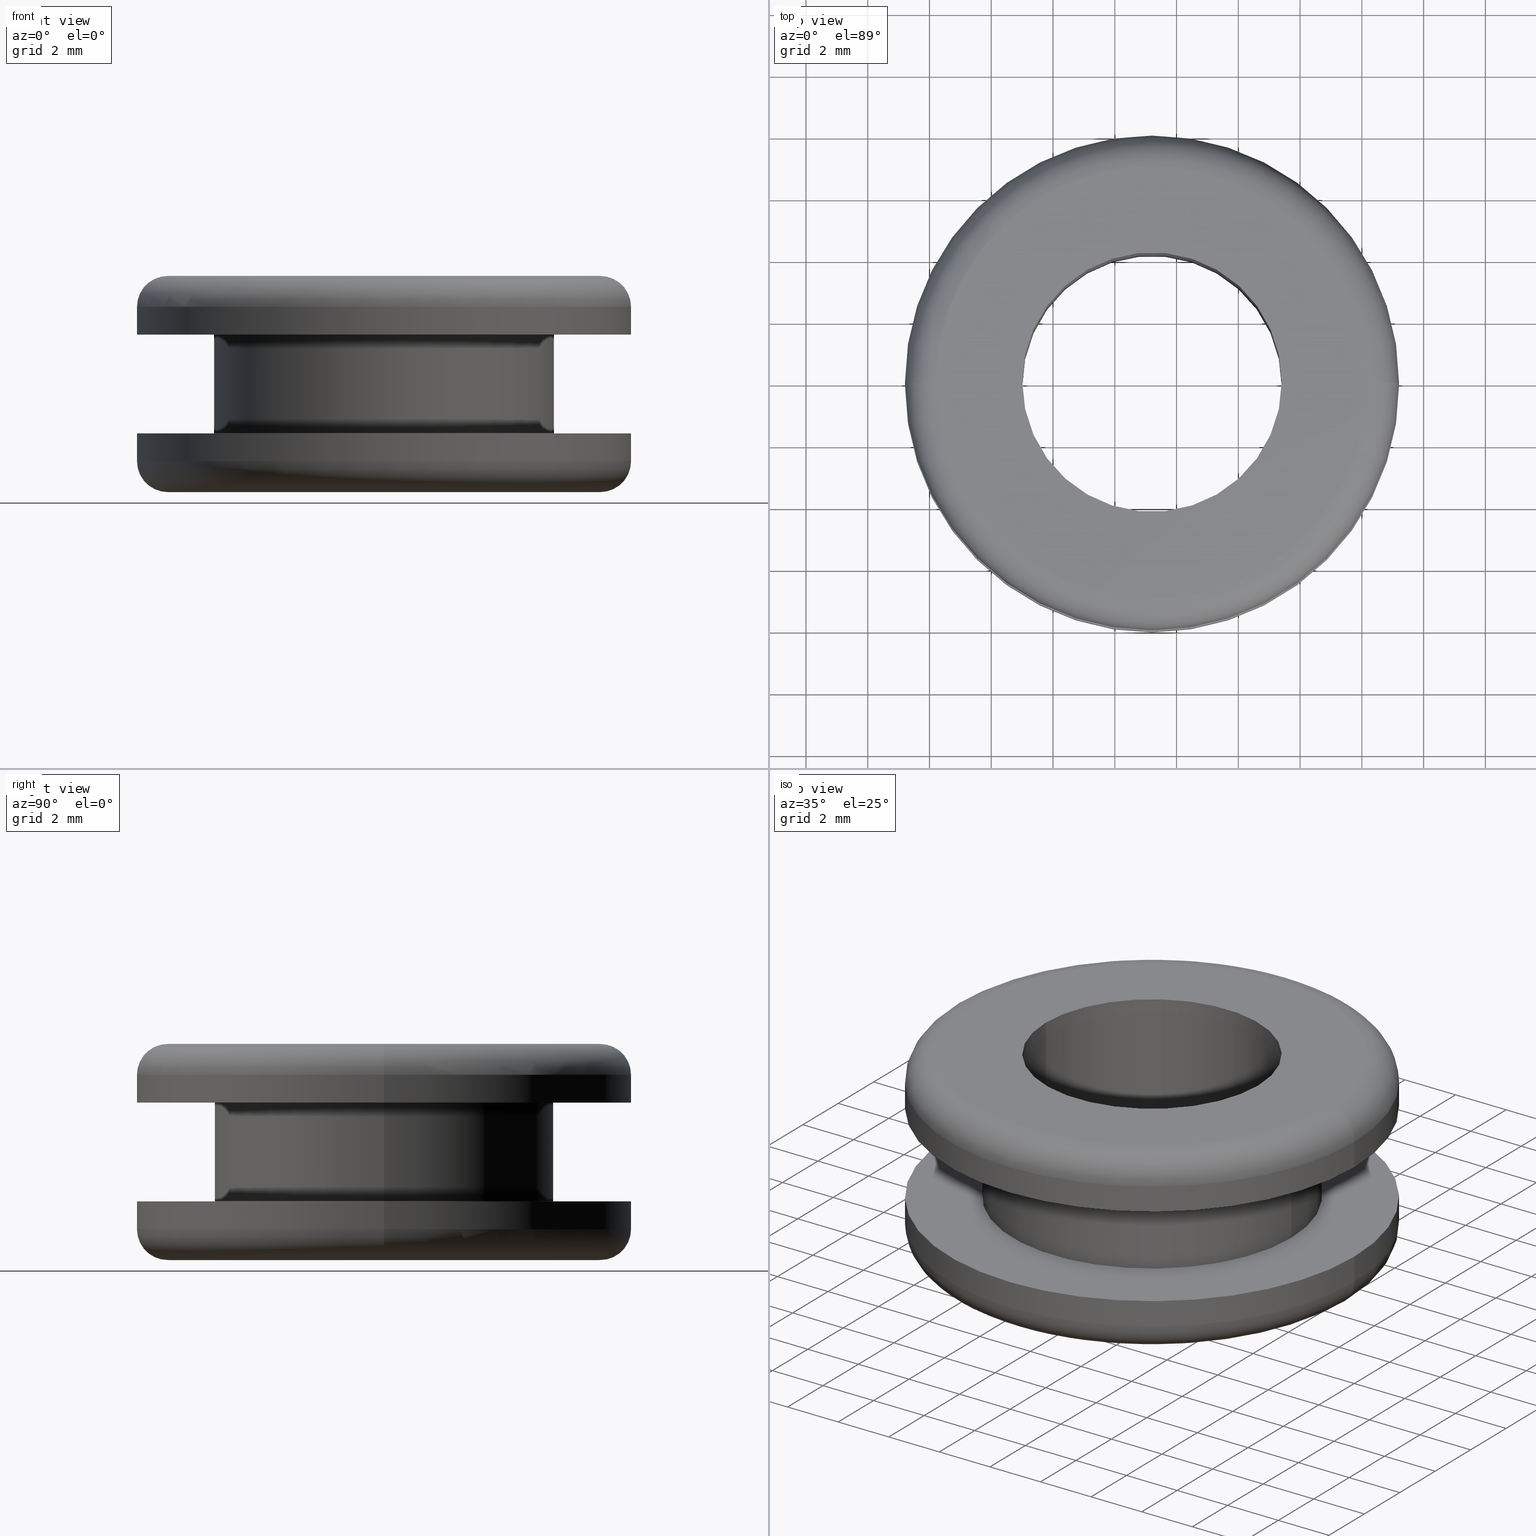
[diagram: canonical four-view strip — front | top / right | iso, engineering-drawing reading convention]
A machine part, canonical four-view strip (front | top / right | iso — engineering-drawing reading convention). The complete STEP part file that produces these views, byte-faithful:
ISO-10303-21;
HEADER;
FILE_DESCRIPTION (( 'STEP AP214' ),
    '1' );
FILE_NAME ('TM_346_5.STEP',
    '2018-06-13T02:49:38',
    ( '' ),
    ( '' ),
    'SwSTEP 2.0',
    'SolidWorks 2015',
    '' );
FILE_SCHEMA (( 'AUTOMOTIVE_DESIGN' ));
ENDSEC;

DATA;
#1 = CARTESIAN_POINT ( 'NONE',  ( 0.0000000000000000000, 0.0000000000000000000, 0.0000000000000000000 ) ) ;
#2 = VERTEX_POINT ( 'NONE', #452 ) ;
#3 = CARTESIAN_POINT ( 'NONE',  ( 103.4049372964547000, 5.143516556265810400E-016, 147.3726952467922000 ) ) ;
#4 = ORIENTED_EDGE ( 'NONE', *, *, #198, .F. ) ;
#5 = DIRECTION ( 'NONE',  ( -1.000000000000000000, 0.0000000000000000000, 0.0000000000000000000 ) ) ;
#6 = CIRCLE ( 'NONE', #473, 6.999999999875009300 ) ;
#7 = SURFACE_STYLE_FILL_AREA ( #62 ) ;
#8 = DIRECTION ( 'NONE',  ( 0.0000000000000000000, 0.0000000000000000000, -1.000000000000000000 ) ) ;
#9 = AXIS2_PLACEMENT_3D ( 'NONE', #443, #225, #255 ) ;
#10 = EDGE_CURVE ( 'NONE', #275, #220, #124, .T. ) ;
#11 = CARTESIAN_POINT ( 'NONE',  ( 99.20493729657970100, 0.0000000000000000000, 141.3726952467922000 ) ) ;
#12 = PLANE ( 'NONE',  #95 ) ;
#13 = EDGE_LOOP ( 'NONE', ( #163, #157 ) ) ;
#14 = FACE_BOUND ( 'NONE', #337, .T. ) ;
#15 = DIRECTION ( 'NONE',  ( 0.0000000000000000000, 0.0000000000000000000, -1.000000000000000000 ) ) ;
#16 = AXIS2_PLACEMENT_3D ( 'NONE', #226, #290, #221 ) ;
#17 = AXIS2_PLACEMENT_3D ( 'NONE', #126, #48, #430 ) ;
#18 = DIRECTION ( 'NONE',  ( 1.000000000000000000, 0.0000000000000000000, 0.0000000000000000000 ) ) ;
#19 = DIRECTION ( 'NONE',  ( -1.000000000000000000, 0.0000000000000000000, 0.0000000000000000000 ) ) ;
#20 = TOROIDAL_SURFACE ( 'NONE', #373, 6.999999999875010200, 1.000000000000000000 ) ;
#21 = PRODUCT_DEFINITION_CONTEXT ( 'detailed design', #251, 'design' ) ;
#22 = TOROIDAL_SURFACE ( 'NONE', #291, 6.999999999875010200, 1.000000000000000000 ) ;
#23 = VECTOR ( 'NONE', #249, 1000.000000000000000 ) ;
#24 = VERTEX_POINT ( 'NONE', #171 ) ;
#25 = CYLINDRICAL_SURFACE ( 'NONE', #418, 7.999999999874954200 ) ;
#26 = LINE ( 'NONE', #431, #412 ) ;
#27 = CARTESIAN_POINT ( 'NONE',  ( 92.20493729670468500, 0.0000000000000000000, 146.3726952467922300 ) ) ;
#28 = DIRECTION ( 'NONE',  ( -1.000000000000000000, 0.0000000000000000000, 0.0000000000000000000 ) ) ;
#29 = AXIS2_PLACEMENT_3D ( 'NONE', #441, #438, #145 ) ;
#30 = EDGE_CURVE ( 'NONE', #363, #289, #156, .T. ) ;
#31 = VERTEX_POINT ( 'NONE', #170 ) ;
#32 = ADVANCED_FACE ( 'NONE', ( #314, #14 ), #12, .F. ) ;
#33 = AXIS2_PLACEMENT_3D ( 'NONE', #346, #196, #155 ) ;
#34 = CIRCLE ( 'NONE', #56, 1.000000000000000900 ) ;
#35 = DIRECTION ( 'NONE',  ( -1.000000000000000000, 0.0000000000000000000, 0.0000000000000000000 ) ) ;
#36 = EDGE_CURVE ( 'NONE', #52, #275, #206, .T. ) ;
#37 = DIRECTION ( 'NONE',  ( -1.000000000000000000, 0.0000000000000000000, 0.0000000000000000000 ) ) ;
#38 = ORIENTED_EDGE ( 'NONE', *, *, #162, .F. ) ;
#39 = PRESENTATION_STYLE_ASSIGNMENT (( #362 ) ) ;
#40 = ORIENTED_EDGE ( 'NONE', *, *, #401, .T. ) ;
#41 = CYLINDRICAL_SURFACE ( 'NONE', #17, 7.999999999875010200 ) ;
#42 = DIRECTION ( 'NONE',  ( 0.0000000000000000000, 0.0000000000000000000, -1.000000000000000000 ) ) ;
#43 = PLANE ( 'NONE',  #33 ) ;
#44 = TOROIDAL_SURFACE ( 'NONE', #457, 6.999999999875010200, 1.000000000000000000 ) ;
#45 =( NAMED_UNIT ( * ) PLANE_ANGLE_UNIT ( ) SI_UNIT ( $, .RADIAN. ) );
#46 = ORIENTED_EDGE ( 'NONE', *, *, #30, .F. ) ;
#47 = AXIS2_PLACEMENT_3D ( 'NONE', #416, #165, #340 ) ;
#48 = DIRECTION ( 'NONE',  ( 0.0000000000000000000, 0.0000000000000000000, -1.000000000000000000 ) ) ;
#49 =( GEOMETRIC_REPRESENTATION_CONTEXT ( 3 ) GLOBAL_UNCERTAINTY_ASSIGNED_CONTEXT ( ( #79 ) ) GLOBAL_UNIT_ASSIGNED_CONTEXT ( ( #398, #182, #440 ) ) REPRESENTATION_CONTEXT ( 'NONE', 'WORKASPACE' ) );
#50 = DIRECTION ( 'NONE',  ( -1.000000000000000000, 0.0000000000000000000, 0.0000000000000000000 ) ) ;
#51 = DIRECTION ( 'NONE',  ( -1.000000000000000000, 0.0000000000000000000, 0.0000000000000000000 ) ) ;
#52 = VERTEX_POINT ( 'NONE', #296 ) ;
#53 = ORIENTED_EDGE ( 'NONE', *, *, #295, .F. ) ;
#54 = CARTESIAN_POINT ( 'NONE',  ( 99.20493729657970100, 0.0000000000000000000, 140.3726952467922000 ) ) ;
#55 = CYLINDRICAL_SURFACE ( 'NONE', #321, 5.499999999874910700 ) ;
#56 = AXIS2_PLACEMENT_3D ( 'NONE', #144, #309, #444 ) ;
#57 = EDGE_CURVE ( 'NONE', #462, #31, #200, .T. ) ;
#58 = FILL_AREA_STYLE ('',( #322 ) ) ;
#59 = EDGE_LOOP ( 'NONE', ( #197, #376, #85, #180 ) ) ;
#60 = DIRECTION ( 'NONE',  ( -1.000000000000000000, 0.0000000000000000000, 0.0000000000000000000 ) ) ;
#61 = DIRECTION ( 'NONE',  ( 0.0000000000000000000, 0.0000000000000000000, -1.000000000000000000 ) ) ;
#62 = FILL_AREA_STYLE ('',( #320 ) ) ;
#63 = FACE_OUTER_BOUND ( 'NONE', #224, .T. ) ;
#64 = FACE_OUTER_BOUND ( 'NONE', #323, .T. ) ;
#65 = EDGE_CURVE ( 'NONE', #328, #130, #246, .T. ) ;
#66 = VERTEX_POINT ( 'NONE', #353 ) ;
#67 = EDGE_LOOP ( 'NONE', ( #347, #132, #133, #89 ) ) ;
#68 = DIRECTION ( 'NONE',  ( 0.0000000000000000000, 0.0000000000000000000, -1.000000000000000000 ) ) ;
#69 = DIRECTION ( 'NONE',  ( -1.000000000000000000, 0.0000000000000000000, 0.0000000000000000000 ) ) ;
#70 = ORIENTED_EDGE ( 'NONE', *, *, #65, .T. ) ;
#71 = AXIS2_PLACEMENT_3D ( 'NONE', #27, #426, #465 ) ;
#72 = DIRECTION ( 'NONE',  ( -1.000000000000000000, 0.0000000000000000000, 0.0000000000000000000 ) ) ;
#73 = AXIS2_PLACEMENT_3D ( 'NONE', #478, #388, #81 ) ;
#74 = VECTOR ( 'NONE', #134, 1000.000000000000000 ) ;
#75 = CARTESIAN_POINT ( 'NONE',  ( 107.2049372964547000, 9.797174393025757100E-016, 141.3726952467922000 ) ) ;
#76 = LINE ( 'NONE', #229, #166 ) ;
#77 = ORIENTED_EDGE ( 'NONE', *, *, #215, .F. ) ;
#78 = CARTESIAN_POINT ( 'NONE',  ( 107.2049372964547000, 9.797174393025757100E-016, 0.0000000000000000000 ) ) ;
#79 = UNCERTAINTY_MEASURE_WITH_UNIT (LENGTH_MEASURE( 1.000000000000000100E-005 ), #398, 'distance_accuracy_value', 'NONE');
#80 = EDGE_LOOP ( 'NONE', ( #77, #384 ) ) ;
#81 = DIRECTION ( 'NONE',  ( -1.000000000000000000, 0.0000000000000000000, 0.0000000000000000000 ) ) ;
#82 = AXIS2_PLACEMENT_3D ( 'NONE', #372, #42, #28 ) ;
#83 = CARTESIAN_POINT ( 'NONE',  ( 93.70493729670478400, 0.0000000000000000000, 142.2726952467922100 ) ) ;
#84 = EDGE_CURVE ( 'NONE', #410, #31, #281, .T. ) ;
#85 = ORIENTED_EDGE ( 'NONE', *, *, #119, .F. ) ;
#86 = CARTESIAN_POINT ( 'NONE',  ( 99.20493729657970100, 0.0000000000000000000, 146.3726952467922300 ) ) ;
#87 = DIRECTION ( 'NONE',  ( 0.0000000000000000000, 0.0000000000000000000, -1.000000000000000000 ) ) ;
#88 = CARTESIAN_POINT ( 'NONE',  ( 104.7049372964545900, 0.0000000000000000000, 142.2726952467922100 ) ) ;
#89 = ORIENTED_EDGE ( 'NONE', *, *, #313, .F. ) ;
#90 = CIRCLE ( 'NONE', #98, 5.499999999874910700 ) ;
#91 = ORIENTED_EDGE ( 'NONE', *, *, #216, .F. ) ;
#92 = EDGE_CURVE ( 'NONE', #220, #66, #293, .T. ) ;
#93 = ORIENTED_EDGE ( 'NONE', *, *, #65, .F. ) ;
#94 = ORIENTED_EDGE ( 'NONE', *, *, #313, .T. ) ;
#95 = AXIS2_PLACEMENT_3D ( 'NONE', #419, #368, #329 ) ;
#96 = CIRCLE ( 'NONE', #9, 6.999999999875009300 ) ;
#97 = CARTESIAN_POINT ( 'NONE',  ( 107.2049372964546200, 9.797174393025656500E-016, 142.2726952467919800 ) ) ;
#98 = AXIS2_PLACEMENT_3D ( 'NONE', #118, #109, #161 ) ;
#99 = MANIFOLD_SOLID_BREP ( '���߰�1', #179 ) ;
#100 = CARTESIAN_POINT ( 'NONE',  ( 92.20493729670468500, 0.0000000000000000000, 141.3726952467922000 ) ) ;
#101 = DIRECTION ( 'NONE',  ( -1.000000000000000000, -1.224646799147352500E-016, 0.0000000000000000000 ) ) ;
#102 = ORIENTED_EDGE ( 'NONE', *, *, #367, .F. ) ;
#103 = VECTOR ( 'NONE', #217, 1000.000000000000000 ) ;
#104 = DIRECTION ( 'NONE',  ( 0.0000000000000000000, 0.0000000000000000000, -1.000000000000000000 ) ) ;
#105 = DIRECTION ( 'NONE',  ( 0.0000000000000000000, 0.0000000000000000000, 1.000000000000000000 ) ) ;
#106 = CARTESIAN_POINT ( 'NONE',  ( 93.70493729670478400, 0.0000000000000000000, 0.0000000000000000000 ) ) ;
#107 = DIRECTION ( 'NONE',  ( 0.0000000000000000000, 0.0000000000000000000, -1.000000000000000000 ) ) ;
#108 = ORIENTED_EDGE ( 'NONE', *, *, #258, .F. ) ;
#109 = DIRECTION ( 'NONE',  ( 0.0000000000000000000, 0.0000000000000000000, -1.000000000000000000 ) ) ;
#110 = AXIS2_PLACEMENT_3D ( 'NONE', #158, #304, #121 ) ;
#111 = EDGE_CURVE ( 'NONE', #219, #410, #154, .T. ) ;
#112 = VECTOR ( 'NONE', #280, 1000.000000000000000 ) ;
#113 = DIRECTION ( 'NONE',  ( -1.000000000000000000, 0.0000000000000000000, 0.0000000000000000000 ) ) ;
#114 = DIRECTION ( 'NONE',  ( 0.0000000000000000000, 0.0000000000000000000, -1.000000000000000000 ) ) ;
#115 = CARTESIAN_POINT ( 'NONE',  ( 99.20493729657970100, 0.0000000000000000000, 146.3726952467922300 ) ) ;
#116 = CARTESIAN_POINT ( 'NONE',  ( 91.20493729670468500, 0.0000000000000000000, 0.0000000000000000000 ) ) ;
#117 = ADVANCED_FACE ( 'NONE', ( #63 ), #55, .T. ) ;
#118 = CARTESIAN_POINT ( 'NONE',  ( 99.20493729657970100, 0.0000000000000000000, 145.4726952467922000 ) ) ;
#119 = EDGE_CURVE ( 'NONE', #24, #66, #286, .T. ) ;
#120 = CIRCLE ( 'NONE', #349, 1.000000000000000900 ) ;
#121 = DIRECTION ( 'NONE',  ( -1.000000000000000000, 0.0000000000000000000, 0.0000000000000000000 ) ) ;
#122 = ORIENTED_EDGE ( 'NONE', *, *, #345, .F. ) ;
#123 = ORIENTED_EDGE ( 'NONE', *, *, #139, .T. ) ;
#124 = CIRCLE ( 'NONE', #469, 7.999999999875010200 ) ;
#125 = DIRECTION ( 'NONE',  ( 0.0000000000000000000, 0.0000000000000000000, -1.000000000000000000 ) ) ;
#126 = CARTESIAN_POINT ( 'NONE',  ( 99.20493729657970100, 0.0000000000000000000, 0.0000000000000000000 ) ) ;
#127 = AXIS2_PLACEMENT_3D ( 'NONE', #392, #467, #113 ) ;
#128 = AXIS2_PLACEMENT_3D ( 'NONE', #449, #402, #35 ) ;
#129 = CARTESIAN_POINT ( 'NONE',  ( 99.20493729657970100, 0.0000000000000000000, 146.3726952467922300 ) ) ;
#130 = VERTEX_POINT ( 'NONE', #210 ) ;
#131 = AXIS2_PLACEMENT_3D ( 'NONE', #1, #105, #18 ) ;
#132 = ORIENTED_EDGE ( 'NONE', *, *, #271, .T. ) ;
#133 = ORIENTED_EDGE ( 'NONE', *, *, #367, .T. ) ;
#134 = DIRECTION ( 'NONE',  ( 0.0000000000000000000, 0.0000000000000000000, -1.000000000000000000 ) ) ;
#135 = EDGE_CURVE ( 'NONE', #52, #169, #199, .T. ) ;
#136 = ORIENTED_EDGE ( 'NONE', *, *, #258, .T. ) ;
#137 = CARTESIAN_POINT ( 'NONE',  ( 106.2049372964547000, 8.572527593878403600E-016, 141.3726952467922000 ) ) ;
#138 = TOROIDAL_SURFACE ( 'NONE', #259, 6.999999999875010200, 1.000000000000000000 ) ;
#139 = EDGE_CURVE ( 'NONE', #275, #24, #120, .T. ) ;
#140 = CIRCLE ( 'NONE', #359, 7.999999999875010200 ) ;
#141 = VERTEX_POINT ( 'NONE', #256 ) ;
#142 = COLOUR_RGB ( '',0.7921568627450980000, 0.8196078431372548800, 0.9333333333333333500 ) ;
#143 = ORIENTED_EDGE ( 'NONE', *, *, #333, .T. ) ;
#144 = CARTESIAN_POINT ( 'NONE',  ( 106.2049372964547000, 8.572527593878403600E-016, 146.3726952467922300 ) ) ;
#145 = DIRECTION ( 'NONE',  ( -1.000000000000000000, 0.0000000000000000000, 0.0000000000000000000 ) ) ;
#146 = AXIS2_PLACEMENT_3D ( 'NONE', #137, #326, #101 ) ;
#147 = ORIENTED_EDGE ( 'NONE', *, *, #288, .F. ) ;
#148 = ADVANCED_FACE ( 'NONE', ( #223 ), #25, .T. ) ;
#149 = CARTESIAN_POINT ( 'NONE',  ( 103.4049372964547000, 5.143516556265810400E-016, 140.3726952467922000 ) ) ;
#150 = PRODUCT_DEFINITION ( 'UNKNOWN', '', #178, #21 ) ;
#151 = CIRCLE ( 'NONE', #29, 6.999999999875009300 ) ;
#152 = ADVANCED_FACE ( 'NONE', ( #273 ), #20, .T. ) ;
#153 = DIRECTION ( 'NONE',  ( 0.0000000000000000000, 0.0000000000000000000, -1.000000000000000000 ) ) ;
#154 = LINE ( 'NONE', #106, #103 ) ;
#155 = DIRECTION ( 'NONE',  ( 1.000000000000000000, 0.0000000000000000000, 0.0000000000000000000 ) ) ;
#156 = CIRCLE ( 'NONE', #16, 4.199999999875012200 ) ;
#157 = ORIENTED_EDGE ( 'NONE', *, *, #241, .F. ) ;
#158 = CARTESIAN_POINT ( 'NONE',  ( 99.20493729657970100, 0.0000000000000000000, 145.4726952467922000 ) ) ;
#159 = CARTESIAN_POINT ( 'NONE',  ( 99.20493729657970100, 0.0000000000000000000, 140.3726952467922000 ) ) ;
#160 = AXIS2_PLACEMENT_3D ( 'NONE', #262, #389, #69 ) ;
#161 = DIRECTION ( 'NONE',  ( -1.000000000000000000, 0.0000000000000000000, 0.0000000000000000000 ) ) ;
#162 = EDGE_CURVE ( 'NONE', #169, #220, #26, .T. ) ;
#163 = ORIENTED_EDGE ( 'NONE', *, *, #135, .F. ) ;
#164 = CARTESIAN_POINT ( 'NONE',  ( 106.2049372964546000, 0.0000000000000000000, 140.3726952467922000 ) ) ;
#165 = DIRECTION ( 'NONE',  ( 0.0000000000000000000, 0.0000000000000000000, -1.000000000000000000 ) ) ;
#166 = VECTOR ( 'NONE', #107, 1000.000000000000000 ) ;
#167 = ORIENTED_EDGE ( 'NONE', *, *, #345, .T. ) ;
#168 = EDGE_CURVE ( 'NONE', #220, #275, #394, .T. ) ;
#169 = VERTEX_POINT ( 'NONE', #97 ) ;
#170 = CARTESIAN_POINT ( 'NONE',  ( 104.7049372964546000, 6.735557395157250200E-016, 142.2726952467922100 ) ) ;
#171 = CARTESIAN_POINT ( 'NONE',  ( 92.20493729670468500, 0.0000000000000000000, 140.3726952467922000 ) ) ;
#172 = ORIENTED_EDGE ( 'NONE', *, *, #162, .T. ) ;
#173 = CARTESIAN_POINT ( 'NONE',  ( 99.20493729657970100, 0.0000000000000000000, 146.3726952467922300 ) ) ;
#174 = STYLED_ITEM ( 'NONE', ( #382 ), #99 ) ;
#175 = DIRECTION ( 'NONE',  ( -1.000000000000000000, 0.0000000000000000000, 0.0000000000000000000 ) ) ;
#176 = AXIS2_PLACEMENT_3D ( 'NONE', #300, #375, #50 ) ;
#177 = DIRECTION ( 'NONE',  ( -0.0000000000000000000, -1.000000000000000000, -0.0000000000000000000 ) ) ;
#178 = PRODUCT_DEFINITION_FORMATION_WITH_SPECIFIED_SOURCE ( 'ANY', '', #303, .NOT_KNOWN. ) ;
#179 = CLOSED_SHELL ( 'NONE', ( #437, #190, #339, #117, #408, #307, #306, #148, #476, #341, #193, #374, #152, #32, #474, #264 ) ) ;
#180 = ORIENTED_EDGE ( 'NONE', *, *, #139, .F. ) ;
#181 = DIRECTION ( 'NONE',  ( 0.0000000000000000000, 0.0000000000000000000, -1.000000000000000000 ) ) ;
#182 =( NAMED_UNIT ( * ) PLANE_ANGLE_UNIT ( ) SI_UNIT ( $, .RADIAN. ) );
#183 = DIRECTION ( 'NONE',  ( 0.0000000000000000000, 0.0000000000000000000, 1.000000000000000000 ) ) ;
#184 = SURFACE_STYLE_USAGE ( .BOTH. , #371 ) ;
#185 = EDGE_LOOP ( 'NONE', ( #91, #390, #70, #453 ) ) ;
#186 = AXIS2_PLACEMENT_3D ( 'NONE', #164, #183, #257 ) ;
#187 = EDGE_CURVE ( 'NONE', #470, #141, #400, .T. ) ;
#188 = VECTOR ( 'NONE', #432, 1000.000000000000000 ) ;
#189 = CARTESIAN_POINT ( 'NONE',  ( 99.20493729657970100, 0.0000000000000000000, 145.4726952467922000 ) ) ;
#190 = ADVANCED_FACE ( 'NONE', ( #319 ), #44, .T. ) ;
#191 = LINE ( 'NONE', #116, #274 ) ;
#192 = DIRECTION ( 'NONE',  ( -1.000000000000000000, 0.0000000000000000000, 0.0000000000000000000 ) ) ;
#193 = ADVANCED_FACE ( 'NONE', ( #427, #245 ), #43, .F. ) ;
#194 = ORIENTED_EDGE ( 'NONE', *, *, #135, .T. ) ;
#195 = SURFACE_STYLE_FILL_AREA ( #58 ) ;
#196 = DIRECTION ( 'NONE',  ( 0.0000000000000000000, 0.0000000000000000000, 1.000000000000000000 ) ) ;
#197 = ORIENTED_EDGE ( 'NONE', *, *, #10, .T. ) ;
#198 = EDGE_CURVE ( 'NONE', #66, #24, #96, .T. ) ;
#199 = CIRCLE ( 'NONE', #278, 7.999999999874912500 ) ;
#200 = LINE ( 'NONE', #471, #23 ) ;
#201 = VERTEX_POINT ( 'NONE', #3 ) ;
#202 = CARTESIAN_POINT ( 'NONE',  ( 93.70493729670478400, 0.0000000000000000000, 145.4726952467922000 ) ) ;
#203 = ORIENTED_EDGE ( 'NONE', *, *, #187, .T. ) ;
#204 = PRESENTATION_LAYER_ASSIGNMENT (  '', '', ( #174 ) ) ;
#205 = AXIS2_PLACEMENT_3D ( 'NONE', #88, #266, #192 ) ;
#206 = LINE ( 'NONE', #429, #74 ) ;
#207 = PRODUCT_RELATED_PRODUCT_CATEGORY ( 'part', '', ( #303 ) ) ;
#208 = FACE_OUTER_BOUND ( 'NONE', #294, .T. ) ;
#209 = UNCERTAINTY_MEASURE_WITH_UNIT (LENGTH_MEASURE( 1.000000000000000100E-005 ), #472, 'distance_accuracy_value', 'NONE');
#210 = CARTESIAN_POINT ( 'NONE',  ( 91.20493729670468500, 0.0000000000000000000, 146.3726952467922300 ) ) ;
#211 = ORIENTED_EDGE ( 'NONE', *, *, #271, .F. ) ;
#212 = CIRCLE ( 'NONE', #214, 5.499999999874910700 ) ;
#213 = ORIENTED_EDGE ( 'NONE', *, *, #445, .F. ) ;
#214 = AXIS2_PLACEMENT_3D ( 'NONE', #464, #8, #72 ) ;
#215 = EDGE_CURVE ( 'NONE', #328, #352, #151, .T. ) ;
#216 = EDGE_CURVE ( 'NONE', #352, #470, #34, .T. ) ;
#217 = DIRECTION ( 'NONE',  ( 0.0000000000000000000, 0.0000000000000000000, -1.000000000000000000 ) ) ;
#218 = DIRECTION ( 'NONE',  ( 0.0000000000000000000, 0.0000000000000000000, -1.000000000000000000 ) ) ;
#219 = VERTEX_POINT ( 'NONE', #202 ) ;
#220 = VERTEX_POINT ( 'NONE', #75 ) ;
#221 = DIRECTION ( 'NONE',  ( -1.000000000000000000, 0.0000000000000000000, 0.0000000000000000000 ) ) ;
#222 = CARTESIAN_POINT ( 'NONE',  ( 99.20493729657970100, 0.0000000000000000000, 141.3726952467922000 ) ) ;
#223 = FACE_OUTER_BOUND ( 'NONE', #254, .T. ) ;
#224 = EDGE_LOOP ( 'NONE', ( #414, #343, #247, #365 ) ) ;
#225 = DIRECTION ( 'NONE',  ( 0.0000000000000000000, 0.0000000000000000000, -1.000000000000000000 ) ) ;
#226 = CARTESIAN_POINT ( 'NONE',  ( 99.20493729657970100, 0.0000000000000000000, 140.3726952467922000 ) ) ;
#227 = DIRECTION ( 'NONE',  ( -1.000000000000000000, 0.0000000000000000000, 0.0000000000000000000 ) ) ;
#228 = MECHANICAL_DESIGN_GEOMETRIC_PRESENTATION_REPRESENTATION (  '', ( #174 ), #248 ) ;
#229 = CARTESIAN_POINT ( 'NONE',  ( 95.00493729670468200, 0.0000000000000000000, 0.0000000000000000000 ) ) ;
#230 = ORIENTED_EDGE ( 'NONE', *, *, #422, .F. ) ;
#231 = CARTESIAN_POINT ( 'NONE',  ( 107.2049372964547000, 9.797174393025757100E-016, 146.3726952467922300 ) ) ;
#232 = CIRCLE ( 'NONE', #160, 7.999999999875010200 ) ;
#233 = CARTESIAN_POINT ( 'NONE',  ( 95.00493729670468200, 0.0000000000000000000, 140.3726952467922000 ) ) ;
#234 = DIRECTION ( 'NONE',  ( -1.000000000000000000, 0.0000000000000000000, 0.0000000000000000000 ) ) ;
#235 = AXIS2_PLACEMENT_3D ( 'NONE', #344, #442, #37 ) ;
#236 = CARTESIAN_POINT ( 'NONE',  ( 91.20493729670468500, 0.0000000000000000000, 141.3726952467922000 ) ) ;
#237 = CIRCLE ( 'NONE', #110, 7.999999999875010200 ) ;
#238 = ORIENTED_EDGE ( 'NONE', *, *, #241, .T. ) ;
#239 = DIRECTION ( 'NONE',  ( -1.000000000000000000, 0.0000000000000000000, 0.0000000000000000000 ) ) ;
#240 = ADVANCED_BREP_SHAPE_REPRESENTATION ( 'TM_346_5', ( #99, #131 ), #447 ) ;
#241 = EDGE_CURVE ( 'NONE', #169, #52, #475, .T. ) ;
#242 = EDGE_LOOP ( 'NONE', ( #282, #454 ) ) ;
#243 = DIRECTION ( 'NONE',  ( -1.000000000000000000, 0.0000000000000000000, 0.0000000000000000000 ) ) ;
#244 = ORIENTED_EDGE ( 'NONE', *, *, #216, .T. ) ;
#245 = FACE_OUTER_BOUND ( 'NONE', #411, .T. ) ;
#246 = CIRCLE ( 'NONE', #71, 1.000000000000000900 ) ;
#247 = ORIENTED_EDGE ( 'NONE', *, *, #84, .F. ) ;
#248 =( GEOMETRIC_REPRESENTATION_CONTEXT ( 3 ) GLOBAL_UNCERTAINTY_ASSIGNED_CONTEXT ( ( #325 ) ) GLOBAL_UNIT_ASSIGNED_CONTEXT ( ( #395, #297, #355 ) ) REPRESENTATION_CONTEXT ( 'NONE', 'WORKASPACE' ) );
#249 = DIRECTION ( 'NONE',  ( 0.0000000000000000000, 0.0000000000000000000, -1.000000000000000000 ) ) ;
#250 = STYLED_ITEM ( 'NONE', ( #39 ), #240 ) ;
#251 = APPLICATION_CONTEXT ( 'automotive_design' ) ;
#252 = FACE_OUTER_BOUND ( 'NONE', #284, .T. ) ;
#253 = ORIENTED_EDGE ( 'NONE', *, *, #119, .T. ) ;
#254 = EDGE_LOOP ( 'NONE', ( #38, #238, #354, #399 ) ) ;
#255 = DIRECTION ( 'NONE',  ( -1.000000000000000000, 0.0000000000000000000, 0.0000000000000000000 ) ) ;
#256 = CARTESIAN_POINT ( 'NONE',  ( 107.2049372964547000, 9.797174393025757100E-016, 145.4726952467922000 ) ) ;
#257 = DIRECTION ( 'NONE',  ( 1.000000000000000000, 0.0000000000000000000, 0.0000000000000000000 ) ) ;
#258 = EDGE_CURVE ( 'NONE', #358, #141, #237, .T. ) ;
#259 = AXIS2_PLACEMENT_3D ( 'NONE', #222, #114, #448 ) ;
#260 = CIRCLE ( 'NONE', #424, 4.199999999875012200 ) ;
#261 = ORIENTED_EDGE ( 'NONE', *, *, #36, .F. ) ;
#262 = CARTESIAN_POINT ( 'NONE',  ( 99.20493729657970100, 0.0000000000000000000, 145.4726952467922000 ) ) ;
#263 = FACE_OUTER_BOUND ( 'NONE', #466, .T. ) ;
#264 = ADVANCED_FACE ( 'NONE', ( #338, #404 ), #383, .F. ) ;
#265 = CIRCLE ( 'NONE', #235, 4.199999999875012200 ) ;
#266 = DIRECTION ( 'NONE',  ( 0.0000000000000000000, 0.0000000000000000000, -1.000000000000000000 ) ) ;
#267 = ORIENTED_EDGE ( 'NONE', *, *, #333, .F. ) ;
#268 = SHAPE_DEFINITION_REPRESENTATION ( #308, #240 ) ;
#269 = ORIENTED_EDGE ( 'NONE', *, *, #422, .T. ) ;
#270 = CARTESIAN_POINT ( 'NONE',  ( 106.2049372964547000, 9.184850993452081300E-016, 147.3726952467922000 ) ) ;
#271 = EDGE_CURVE ( 'NONE', #201, #289, #456, .T. ) ;
#272 = CARTESIAN_POINT ( 'NONE',  ( 92.20493729670468500, 0.0000000000000000000, 147.3726952467922000 ) ) ;
#273 = FACE_OUTER_BOUND ( 'NONE', #185, .T. ) ;
#274 = VECTOR ( 'NONE', #87, 1000.000000000000000 ) ;
#275 = VERTEX_POINT ( 'NONE', #236 ) ;
#276 = CARTESIAN_POINT ( 'NONE',  ( 99.20493729657970100, 0.0000000000000000000, 0.0000000000000000000 ) ) ;
#277 = DIRECTION ( 'NONE',  ( -1.000000000000000000, 0.0000000000000000000, 0.0000000000000000000 ) ) ;
#278 = AXIS2_PLACEMENT_3D ( 'NONE', #357, #318, #175 ) ;
#279 = PRESENTATION_LAYER_ASSIGNMENT (  '', '', ( #250 ) ) ;
#280 = DIRECTION ( 'NONE',  ( 0.0000000000000000000, 0.0000000000000000000, -1.000000000000000000 ) ) ;
#281 = CIRCLE ( 'NONE', #127, 5.499999999874910700 ) ;
#282 = ORIENTED_EDGE ( 'NONE', *, *, #84, .T. ) ;
#283 = FACE_OUTER_BOUND ( 'NONE', #391, .T. ) ;
#284 = EDGE_LOOP ( 'NONE', ( #143, #203, #108, #417 ) ) ;
#285 = DIRECTION ( 'NONE',  ( 0.0000000000000000000, 0.0000000000000000000, -1.000000000000000000 ) ) ;
#286 = CIRCLE ( 'NONE', #302, 6.999999999875009300 ) ;
#287 = COLOUR_RGB ( '',0.7921568627450980000, 0.8196078431372548800, 0.9333333333333333500 ) ;
#288 = EDGE_CURVE ( 'NONE', #141, #358, #232, .T. ) ;
#289 = VERTEX_POINT ( 'NONE', #149 ) ;
#290 = DIRECTION ( 'NONE',  ( 0.0000000000000000000, 0.0000000000000000000, -1.000000000000000000 ) ) ;
#291 = AXIS2_PLACEMENT_3D ( 'NONE', #407, #68, #227 ) ;
#292 = DIRECTION ( 'NONE',  ( 0.0000000000000000000, 0.0000000000000000000, -1.000000000000000000 ) ) ;
#293 = CIRCLE ( 'NONE', #146, 1.000000000000000900 ) ;
#294 = EDGE_LOOP ( 'NONE', ( #310, #434, #40, #147 ) ) ;
#295 = EDGE_CURVE ( 'NONE', #31, #410, #212, .T. ) ;
#296 = CARTESIAN_POINT ( 'NONE',  ( 91.20493729670478400, 0.0000000000000000000, 142.2726952467919800 ) ) ;
#297 =( NAMED_UNIT ( * ) PLANE_ANGLE_UNIT ( ) SI_UNIT ( $, .RADIAN. ) );
#298 = ORIENTED_EDGE ( 'NONE', *, *, #111, .T. ) ;
#299 = APPLICATION_PROTOCOL_DEFINITION ( 'draft international standard', 'automotive_design', 1998, #360 ) ;
#300 = CARTESIAN_POINT ( 'NONE',  ( 99.20493729657970100, 0.0000000000000000000, 0.0000000000000000000 ) ) ;
#301 = ORIENTED_EDGE ( 'NONE', *, *, #317, .T. ) ;
#302 = AXIS2_PLACEMENT_3D ( 'NONE', #54, #15, #51 ) ;
#303 = PRODUCT ( 'TM_346_5', 'TM_346_5', '', ( #458 ) ) ;
#304 = DIRECTION ( 'NONE',  ( 0.0000000000000000000, 0.0000000000000000000, -1.000000000000000000 ) ) ;
#305 = MECHANICAL_DESIGN_GEOMETRIC_PRESENTATION_REPRESENTATION (  '', ( #250 ), #49 ) ;
#306 = ADVANCED_FACE ( 'NONE', ( #311 ), #138, .T. ) ;
#307 = ADVANCED_FACE ( 'NONE', ( #455 ), #22, .T. ) ;
#308 = PRODUCT_DEFINITION_SHAPE ( 'NONE', 'NONE',  #150 ) ;
#309 = DIRECTION ( 'NONE',  ( -1.224646799147353200E-016, 1.000000000000000000, 0.0000000000000000000 ) ) ;
#310 = ORIENTED_EDGE ( 'NONE', *, *, #187, .F. ) ;
#311 = FACE_OUTER_BOUND ( 'NONE', #428, .T. ) ;
#312 = CARTESIAN_POINT ( 'NONE',  ( 91.20493729670468500, 0.0000000000000000000, 145.4726952467922000 ) ) ;
#313 = EDGE_CURVE ( 'NONE', #2, #363, #76, .T. ) ;
#314 = FACE_OUTER_BOUND ( 'NONE', #80, .T. ) ;
#315 = AXIS2_PLACEMENT_3D ( 'NONE', #115, #436, #380 ) ;
#316 = FACE_OUTER_BOUND ( 'NONE', #67, .T. ) ;
#317 = EDGE_CURVE ( 'NONE', #201, #2, #265, .T. ) ;
#318 = DIRECTION ( 'NONE',  ( 0.0000000000000000000, 0.0000000000000000000, -1.000000000000000000 ) ) ;
#319 = FACE_OUTER_BOUND ( 'NONE', #477, .T. ) ;
#320 = FILL_AREA_STYLE_COLOUR ( '', #287 ) ;
#321 = AXIS2_PLACEMENT_3D ( 'NONE', #397, #334, #361 ) ;
#322 = FILL_AREA_STYLE_COLOUR ( '', #142 ) ;
#323 = EDGE_LOOP ( 'NONE', ( #421, #167, #298, #53 ) ) ;
#324 = DIRECTION ( 'NONE',  ( 0.0000000000000000000, 0.0000000000000000000, -1.000000000000000000 ) ) ;
#325 = UNCERTAINTY_MEASURE_WITH_UNIT (LENGTH_MEASURE( 1.000000000000000100E-005 ), #395, 'distance_accuracy_value', 'NONE');
#326 = DIRECTION ( 'NONE',  ( -1.224646799147353200E-016, 1.000000000000000000, 0.0000000000000000000 ) ) ;
#327 = ORIENTED_EDGE ( 'NONE', *, *, #30, .T. ) ;
#328 = VERTEX_POINT ( 'NONE', #272 ) ;
#329 = DIRECTION ( 'NONE',  ( -1.000000000000000000, 0.0000000000000000000, 0.0000000000000000000 ) ) ;
#330 = PLANE ( 'NONE',  #205 ) ;
#331 = CARTESIAN_POINT ( 'NONE',  ( 99.20493729657970100, 0.0000000000000000000, 0.0000000000000000000 ) ) ;
#332 = CARTESIAN_POINT ( 'NONE',  ( 103.4049372964547000, 5.143516556265813300E-016, 0.0000000000000000000 ) ) ;
#333 = EDGE_CURVE ( 'NONE', #130, #470, #439, .T. ) ;
#334 = DIRECTION ( 'NONE',  ( 0.0000000000000000000, 0.0000000000000000000, -1.000000000000000000 ) ) ;
#335 = DIRECTION ( 'NONE',  ( 0.0000000000000000000, 0.0000000000000000000, -1.000000000000000000 ) ) ;
#336 = AXIS2_PLACEMENT_3D ( 'NONE', #189, #335, #5 ) ;
#337 = EDGE_LOOP ( 'NONE', ( #269, #301 ) ) ;
#338 = FACE_BOUND ( 'NONE', #425, .T. ) ;
#339 = ADVANCED_FACE ( 'NONE', ( #252 ), #381, .T. ) ;
#340 = DIRECTION ( 'NONE',  ( -1.000000000000000000, 0.0000000000000000000, 0.0000000000000000000 ) ) ;
#341 = ADVANCED_FACE ( 'NONE', ( #64 ), #435, .T. ) ;
#342 = DIRECTION ( 'NONE',  ( 0.0000000000000000000, 0.0000000000000000000, -1.000000000000000000 ) ) ;
#343 = ORIENTED_EDGE ( 'NONE', *, *, #57, .T. ) ;
#344 = CARTESIAN_POINT ( 'NONE',  ( 99.20493729657970100, 0.0000000000000000000, 147.3726952467922000 ) ) ;
#345 = EDGE_CURVE ( 'NONE', #462, #219, #351, .T. ) ;
#346 = CARTESIAN_POINT ( 'NONE',  ( 107.2049372964546000, 0.0000000000000000000, 145.4726952467922000 ) ) ;
#347 = ORIENTED_EDGE ( 'NONE', *, *, #317, .F. ) ;
#348 = DIRECTION ( 'NONE',  ( 0.0000000000000000000, 0.0000000000000000000, -1.000000000000000000 ) ) ;
#349 = AXIS2_PLACEMENT_3D ( 'NONE', #100, #177, #459 ) ;
#350 = DIRECTION ( 'NONE',  ( -1.000000000000000000, 0.0000000000000000000, 0.0000000000000000000 ) ) ;
#351 = CIRCLE ( 'NONE', #336, 5.499999999874910700 ) ;
#352 = VERTEX_POINT ( 'NONE', #270 ) ;
#353 = CARTESIAN_POINT ( 'NONE',  ( 106.2049372964547000, 9.184850993452081300E-016, 140.3726952467922000 ) ) ;
#354 = ORIENTED_EDGE ( 'NONE', *, *, #36, .T. ) ;
#355 =( NAMED_UNIT ( * ) SI_UNIT ( $, .STERADIAN. ) SOLID_ANGLE_UNIT ( ) );
#356 = EDGE_CURVE ( 'NONE', #470, #130, #140, .T. ) ;
#357 = CARTESIAN_POINT ( 'NONE',  ( 99.20493729657970100, 0.0000000000000000000, 142.2726952467919800 ) ) ;
#358 = VERTEX_POINT ( 'NONE', #312 ) ;
#359 = AXIS2_PLACEMENT_3D ( 'NONE', #86, #342, #234 ) ;
#360 = APPLICATION_CONTEXT ( 'automotive_design' ) ;
#361 = DIRECTION ( 'NONE',  ( -1.000000000000000000, 0.0000000000000000000, 0.0000000000000000000 ) ) ;
#362 = SURFACE_STYLE_USAGE ( .BOTH. , #423 ) ;
#363 = VERTEX_POINT ( 'NONE', #233 ) ;
#364 = FACE_BOUND ( 'NONE', #242, .T. ) ;
#365 = ORIENTED_EDGE ( 'NONE', *, *, #111, .F. ) ;
#366 = CARTESIAN_POINT ( 'NONE',  ( 104.7049372964546000, 6.735557395157250200E-016, 145.4726952467922000 ) ) ;
#367 = EDGE_CURVE ( 'NONE', #289, #363, #260, .T. ) ;
#368 = DIRECTION ( 'NONE',  ( 0.0000000000000000000, 0.0000000000000000000, -1.000000000000000000 ) ) ;
#369 = DIRECTION ( 'NONE',  ( -1.000000000000000000, 0.0000000000000000000, 0.0000000000000000000 ) ) ;
#370 = ORIENTED_EDGE ( 'NONE', *, *, #215, .T. ) ;
#371 = SURFACE_SIDE_STYLE ('',( #7 ) ) ;
#372 = CARTESIAN_POINT ( 'NONE',  ( 99.20493729657970100, 0.0000000000000000000, 142.2726952467919800 ) ) ;
#373 = AXIS2_PLACEMENT_3D ( 'NONE', #173, #61, #60 ) ;
#374 = ADVANCED_FACE ( 'NONE', ( #208 ), #41, .T. ) ;
#375 = DIRECTION ( 'NONE',  ( 0.0000000000000000000, 0.0000000000000000000, -1.000000000000000000 ) ) ;
#376 = ORIENTED_EDGE ( 'NONE', *, *, #92, .T. ) ;
#377 = FACE_OUTER_BOUND ( 'NONE', #13, .T. ) ;
#378 = ORIENTED_EDGE ( 'NONE', *, *, #10, .F. ) ;
#379 = CARTESIAN_POINT ( 'NONE',  ( 99.20493729657970100, 0.0000000000000000000, 147.3726952467922000 ) ) ;
#380 = DIRECTION ( 'NONE',  ( -1.000000000000000000, 0.0000000000000000000, 0.0000000000000000000 ) ) ;
#381 = CYLINDRICAL_SURFACE ( 'NONE', #387, 7.999999999875010200 ) ;
#382 = PRESENTATION_STYLE_ASSIGNMENT (( #184 ) ) ;
#383 = PLANE ( 'NONE',  #186 ) ;
#384 = ORIENTED_EDGE ( 'NONE', *, *, #385, .F. ) ;
#385 = EDGE_CURVE ( 'NONE', #352, #328, #6, .T. ) ;
#386 = ORIENTED_EDGE ( 'NONE', *, *, #288, .T. ) ;
#387 = AXIS2_PLACEMENT_3D ( 'NONE', #276, #104, #239 ) ;
#388 = DIRECTION ( 'NONE',  ( 0.0000000000000000000, 0.0000000000000000000, -1.000000000000000000 ) ) ;
#389 = DIRECTION ( 'NONE',  ( 0.0000000000000000000, 0.0000000000000000000, -1.000000000000000000 ) ) ;
#390 = ORIENTED_EDGE ( 'NONE', *, *, #385, .T. ) ;
#391 = EDGE_LOOP ( 'NONE', ( #211, #230, #94, #327 ) ) ;
#392 = CARTESIAN_POINT ( 'NONE',  ( 99.20493729657970100, 0.0000000000000000000, 142.2726952467922100 ) ) ;
#393 = ORIENTED_EDGE ( 'NONE', *, *, #168, .T. ) ;
#394 = CIRCLE ( 'NONE', #396, 7.999999999875010200 ) ;
#395 =( LENGTH_UNIT ( ) NAMED_UNIT ( * ) SI_UNIT ( .MILLI., .METRE. ) );
#396 = AXIS2_PLACEMENT_3D ( 'NONE', #433, #125, #350 ) ;
#397 = CARTESIAN_POINT ( 'NONE',  ( 99.20493729657970100, 0.0000000000000000000, 0.0000000000000000000 ) ) ;
#398 =( LENGTH_UNIT ( ) NAMED_UNIT ( * ) SI_UNIT ( .MILLI., .METRE. ) );
#399 = ORIENTED_EDGE ( 'NONE', *, *, #168, .F. ) ;
#400 = LINE ( 'NONE', #78, #112 ) ;
#401 = EDGE_CURVE ( 'NONE', #130, #358, #191, .T. ) ;
#402 = DIRECTION ( 'NONE',  ( 0.0000000000000000000, 0.0000000000000000000, -1.000000000000000000 ) ) ;
#403 = AXIS2_PLACEMENT_3D ( 'NONE', #406, #153, #369 ) ;
#404 = FACE_OUTER_BOUND ( 'NONE', #420, .T. ) ;
#405 = APPLICATION_PROTOCOL_DEFINITION ( 'draft international standard', 'automotive_design', 1998, #251 ) ;
#406 = CARTESIAN_POINT ( 'NONE',  ( 99.20493729657970100, 0.0000000000000000000, 0.0000000000000000000 ) ) ;
#407 = CARTESIAN_POINT ( 'NONE',  ( 99.20493729657970100, 0.0000000000000000000, 141.3726952467922000 ) ) ;
#408 = ADVANCED_FACE ( 'NONE', ( #263 ), #463, .T. ) ;
#409 = CIRCLE ( 'NONE', #47, 4.199999999875012200 ) ;
#410 = VERTEX_POINT ( 'NONE', #83 ) ;
#411 = EDGE_LOOP ( 'NONE', ( #136, #386 ) ) ;
#412 = VECTOR ( 'NONE', #292, 1000.000000000000000 ) ;
#413 =( NAMED_UNIT ( * ) SI_UNIT ( $, .STERADIAN. ) SOLID_ANGLE_UNIT ( ) );
#414 = ORIENTED_EDGE ( 'NONE', *, *, #445, .T. ) ;
#415 = DIRECTION ( 'NONE',  ( -1.000000000000000000, 0.0000000000000000000, 0.0000000000000000000 ) ) ;
#416 = CARTESIAN_POINT ( 'NONE',  ( 99.20493729657970100, 0.0000000000000000000, 147.3726952467922000 ) ) ;
#417 = ORIENTED_EDGE ( 'NONE', *, *, #401, .F. ) ;
#418 = AXIS2_PLACEMENT_3D ( 'NONE', #331, #324, #19 ) ;
#419 = CARTESIAN_POINT ( 'NONE',  ( 103.4049372964546100, 0.0000000000000000000, 147.3726952467922000 ) ) ;
#420 = EDGE_LOOP ( 'NONE', ( #253, #446 ) ) ;
#421 = ORIENTED_EDGE ( 'NONE', *, *, #57, .F. ) ;
#422 = EDGE_CURVE ( 'NONE', #2, #201, #409, .T. ) ;
#423 = SURFACE_SIDE_STYLE ('',( #195 ) ) ;
#424 = AXIS2_PLACEMENT_3D ( 'NONE', #159, #348, #468 ) ;
#425 = EDGE_LOOP ( 'NONE', ( #46, #102 ) ) ;
#426 = DIRECTION ( 'NONE',  ( -0.0000000000000000000, -1.000000000000000000, -0.0000000000000000000 ) ) ;
#427 = FACE_BOUND ( 'NONE', #460, .T. ) ;
#428 = EDGE_LOOP ( 'NONE', ( #450, #393, #123, #4 ) ) ;
#429 = CARTESIAN_POINT ( 'NONE',  ( 91.20493729670474200, 0.0000000000000000000, 0.0000000000000000000 ) ) ;
#430 = DIRECTION ( 'NONE',  ( -1.000000000000000000, 0.0000000000000000000, 0.0000000000000000000 ) ) ;
#431 = CARTESIAN_POINT ( 'NONE',  ( 107.2049372964546600, 9.797174393025694000E-016, 0.0000000000000000000 ) ) ;
#432 = DIRECTION ( 'NONE',  ( 0.0000000000000000000, 0.0000000000000000000, -1.000000000000000000 ) ) ;
#433 = CARTESIAN_POINT ( 'NONE',  ( 99.20493729657970100, 0.0000000000000000000, 141.3726952467922000 ) ) ;
#434 = ORIENTED_EDGE ( 'NONE', *, *, #356, .T. ) ;
#435 = CYLINDRICAL_SURFACE ( 'NONE', #403, 5.499999999874910700 ) ;
#436 = DIRECTION ( 'NONE',  ( 0.0000000000000000000, 0.0000000000000000000, -1.000000000000000000 ) ) ;
#437 = ADVANCED_FACE ( 'NONE', ( #316 ), #461, .F. ) ;
#438 = DIRECTION ( 'NONE',  ( 0.0000000000000000000, 0.0000000000000000000, -1.000000000000000000 ) ) ;
#439 = CIRCLE ( 'NONE', #315, 7.999999999875010200 ) ;
#440 =( NAMED_UNIT ( * ) SI_UNIT ( $, .STERADIAN. ) SOLID_ANGLE_UNIT ( ) );
#441 = CARTESIAN_POINT ( 'NONE',  ( 99.20493729657970100, 0.0000000000000000000, 147.3726952467922000 ) ) ;
#442 = DIRECTION ( 'NONE',  ( 0.0000000000000000000, 0.0000000000000000000, -1.000000000000000000 ) ) ;
#443 = CARTESIAN_POINT ( 'NONE',  ( 99.20493729657970100, 0.0000000000000000000, 140.3726952467922000 ) ) ;
#444 = DIRECTION ( 'NONE',  ( -1.000000000000000000, -1.224646799147352500E-016, 0.0000000000000000000 ) ) ;
#445 = EDGE_CURVE ( 'NONE', #219, #462, #90, .T. ) ;
#446 = ORIENTED_EDGE ( 'NONE', *, *, #198, .T. ) ;
#447 =( GEOMETRIC_REPRESENTATION_CONTEXT ( 3 ) GLOBAL_UNCERTAINTY_ASSIGNED_CONTEXT ( ( #209 ) ) GLOBAL_UNIT_ASSIGNED_CONTEXT ( ( #472, #45, #413 ) ) REPRESENTATION_CONTEXT ( 'NONE', 'WORKASPACE' ) );
#448 = DIRECTION ( 'NONE',  ( -1.000000000000000000, 0.0000000000000000000, 0.0000000000000000000 ) ) ;
#449 = CARTESIAN_POINT ( 'NONE',  ( 99.20493729657970100, 0.0000000000000000000, 0.0000000000000000000 ) ) ;
#450 = ORIENTED_EDGE ( 'NONE', *, *, #92, .F. ) ;
#451 = CYLINDRICAL_SURFACE ( 'NONE', #176, 4.199999999875012200 ) ;
#452 = CARTESIAN_POINT ( 'NONE',  ( 95.00493729670468200, 0.0000000000000000000, 147.3726952467922000 ) ) ;
#453 = ORIENTED_EDGE ( 'NONE', *, *, #356, .F. ) ;
#454 = ORIENTED_EDGE ( 'NONE', *, *, #295, .T. ) ;
#455 = FACE_OUTER_BOUND ( 'NONE', #59, .T. ) ;
#456 = LINE ( 'NONE', #332, #188 ) ;
#457 = AXIS2_PLACEMENT_3D ( 'NONE', #129, #181, #277 ) ;
#458 = PRODUCT_CONTEXT ( 'NONE', #360, 'mechanical' ) ;
#459 = DIRECTION ( 'NONE',  ( 0.0000000000000000000, 0.0000000000000000000, -1.000000000000000000 ) ) ;
#460 = EDGE_LOOP ( 'NONE', ( #213, #122 ) ) ;
#461 = CYLINDRICAL_SURFACE ( 'NONE', #128, 4.199999999875012200 ) ;
#462 = VERTEX_POINT ( 'NONE', #366 ) ;
#463 = CYLINDRICAL_SURFACE ( 'NONE', #73, 7.999999999874954200 ) ;
#464 = CARTESIAN_POINT ( 'NONE',  ( 99.20493729657970100, 0.0000000000000000000, 142.2726952467922100 ) ) ;
#465 = DIRECTION ( 'NONE',  ( 0.0000000000000000000, 0.0000000000000000000, -1.000000000000000000 ) ) ;
#466 = EDGE_LOOP ( 'NONE', ( #194, #172, #378, #261 ) ) ;
#467 = DIRECTION ( 'NONE',  ( 0.0000000000000000000, 0.0000000000000000000, -1.000000000000000000 ) ) ;
#468 = DIRECTION ( 'NONE',  ( -1.000000000000000000, 0.0000000000000000000, 0.0000000000000000000 ) ) ;
#469 = AXIS2_PLACEMENT_3D ( 'NONE', #11, #285, #243 ) ;
#470 = VERTEX_POINT ( 'NONE', #231 ) ;
#471 = CARTESIAN_POINT ( 'NONE',  ( 104.7049372964546000, 6.735557395157251200E-016, 0.0000000000000000000 ) ) ;
#472 =( LENGTH_UNIT ( ) NAMED_UNIT ( * ) SI_UNIT ( .MILLI., .METRE. ) );
#473 = AXIS2_PLACEMENT_3D ( 'NONE', #379, #218, #415 ) ;
#474 = ADVANCED_FACE ( 'NONE', ( #283 ), #451, .F. ) ;
#475 = CIRCLE ( 'NONE', #82, 7.999999999874912500 ) ;
#476 = ADVANCED_FACE ( 'NONE', ( #377, #364 ), #330, .F. ) ;
#477 = EDGE_LOOP ( 'NONE', ( #370, #244, #267, #93 ) ) ;
#478 = CARTESIAN_POINT ( 'NONE',  ( 99.20493729657970100, 0.0000000000000000000, 0.0000000000000000000 ) ) ;
ENDSEC;
END-ISO-10303-21;
